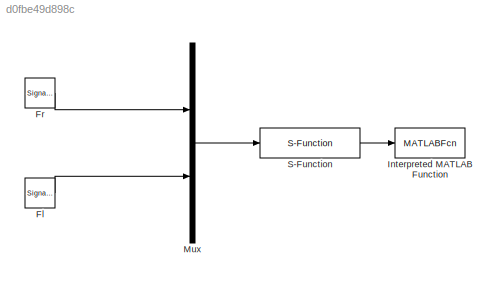
MODEL slx_d0fbe49d898c
KIND model
CONFIG AbsTol = auto
CONFIG EnableMultiTasking = off
CONFIG FixedStep = auto
CONFIG InitFcn = planar_vtol_param
CONFIG MaxStep = auto
CONFIG MinStep = auto
CONFIG RelTol = 1e-3
CONFIG SampleTimeConstraint = Unconstrained
CONFIG Solver = ode45
CONFIG SolverName = ode45
CONFIG StartTime = 0.0
CONFIG StopTime = 10000
BLOCK [SignalGenerator] Fl
  Amplitude = 50
  Frequency = 10
  Ports = [0, 1]
  Units = rad/sec
BLOCK [SignalGenerator] Fr
  Amplitude = 50
  Frequency = 5
  Ports = [0, 1]
  Units = rad/sec
BLOCK [MATLABFcn] Interpreted MATLAB Function
  MATLABFcn = planar_vtol_animation(u)
  OutputDimensions = -0
  Ports = [1]
BLOCK [Mux] Mux
  DisplayOption = bar
  Inputs = 2
  Ports = [2, 1]
BLOCK [S-Function] S-Function
  EnableBusSupport = off
  FunctionName = planar_vtol_dynamics
  Parameters = P
  Ports = [1, 1]
  SFcnIsStateOwnerBlock = off
  SFunctionDeploymentMode = off
LINE Fl:1 -> Mux:2
LINE Fr:1 -> Mux:1
LINE Mux:1 -> S-Function:1
LINE S-Function:1 -> Interpreted MATLAB Function:1
